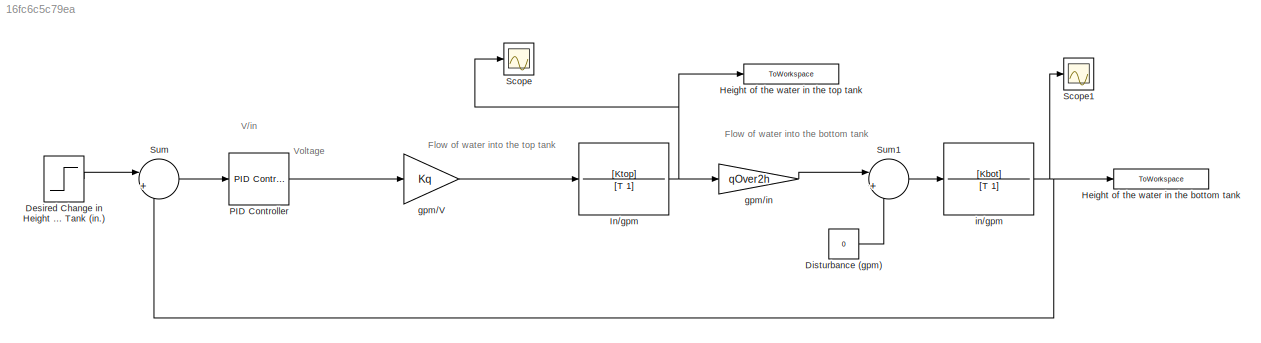
MODEL slx_16fc6c5c79ea
KIND model
CONFIG AbsTol = auto
CONFIG EnableMultiTasking = off
CONFIG FixedStep = auto
CONFIG MaxStep = auto
CONFIG MinStep = auto
CONFIG RelTol = 1e-3
CONFIG SampleTimeConstraint = Unconstrained
CONFIG Solver = VariableStepAuto
CONFIG SolverName = VariableStepAuto
CONFIG StartTime = 0.0
CONFIG StopTime = tsim
BLOCK [Step] Desired Change in Height of Bottom Tank (in.)
  SampleTime = 0
  Time = 10
BLOCK [Constant] Disturbance (gpm)
  Value = 0
BLOCK [ToWorkspace] Height of the water in the bottom tank
  FixptAsFi = on
  MaxDataPoints = inf
  Ports = [1]
  SampleTime = -1
  VariableName = height_bottom
BLOCK [ToWorkspace] Height of the water in the top tank
  FixptAsFi = on
  MaxDataPoints = inf
  Ports = [1]
  SampleTime = -1
  VariableName = height_top
BLOCK [TransferFcn] In//gpm
  Denominator = [T 1]
  Numerator = [Ktop]
BLOCK [Reference] PID Controller  REF=simulink/Continuous/PID Controller
  Ports = [1, 1]
  SourceBlock = simulink/Continuous/PID Controller
  SourceProductBaseCode = SL
  SourceType = PID 1dof
BLOCK [Scope] Scope
  Floating = off
  NumInputPorts = 1
  Ports = [1]
  ScopeSpecificationString = Simulink.scopes.TimeScopeBlockCfg('CurrentConfiguration', extmgr.ConfigurationSet(extmgr.Configuration('Core','General UI',true),extmgr.Configuration('Core','Source UI',true),extmgr.Configuration('Sources','WiredSimulink',true),extmgr.Configuration('Visuals','Time Domain',true,'SerializedDisplays',{struct('MinYLimReal','-0.6951','MaxYLimReal','6.25586','YLabelReal','','MinYLimMag','0.00000','MaxYL...<+1324ch>
BLOCK [Scope] Scope1
  Floating = off
  NumInputPorts = 1
  Ports = [1]
  ScopeSpecificationString = Simulink.scopes.TimeScopeBlockCfg('CurrentConfiguration', extmgr.ConfigurationSet(extmgr.Configuration('Core','General UI',true),extmgr.Configuration('Core','Source UI',true),extmgr.Configuration('Sources','WiredSimulink',true,'DataLoggingVariableName','ScopeData1'),extmgr.Configuration('Visuals','Time Domain',true,'SerializedDisplays',{struct('MinYLimReal','-1.93636','MaxYLimReal','1.69603','YLab...<+1365ch>
BLOCK [Sum] Sum
  Inputs = |+-
  Ports = [2, 1]
BLOCK [Sum] Sum1
  Inputs = |+-
  Ports = [2, 1]
BLOCK [Gain] gpm//V
  Gain = Kq
BLOCK [Gain] gpm//in
  Gain = qOver2h
BLOCK [TransferFcn] in//gpm
  Denominator = [T 1]
  Numerator = [Kbot]
ANNOTATION (root): Flow of water into the bottom tank
ANNOTATION (root): Flow of water into the top tank
ANNOTATION (root): V/in
ANNOTATION (root): Voltage
LINE Desired Change in Height of Bottom Tank (in.):1 -> Sum:1
LINE Disturbance (gpm):1 -> Sum1:2
NET In//gpm:1 -> Height of the water in the top tank:1, Scope:1, gpm//in:1
LINE PID Controller:1 -> gpm//V:1
LINE Sum1:1 -> in//gpm:1
LINE Sum:1 -> PID Controller:1
LINE gpm//V:1 -> In//gpm:1
LINE gpm//in:1 -> Sum1:1
NET in//gpm:1 -> Height of the water in the bottom tank:1, Scope1:1, Sum:2
note: NET lines group one-source signal fan-out (src -> all destinations, sorted); 1:1 wires keep LINE
